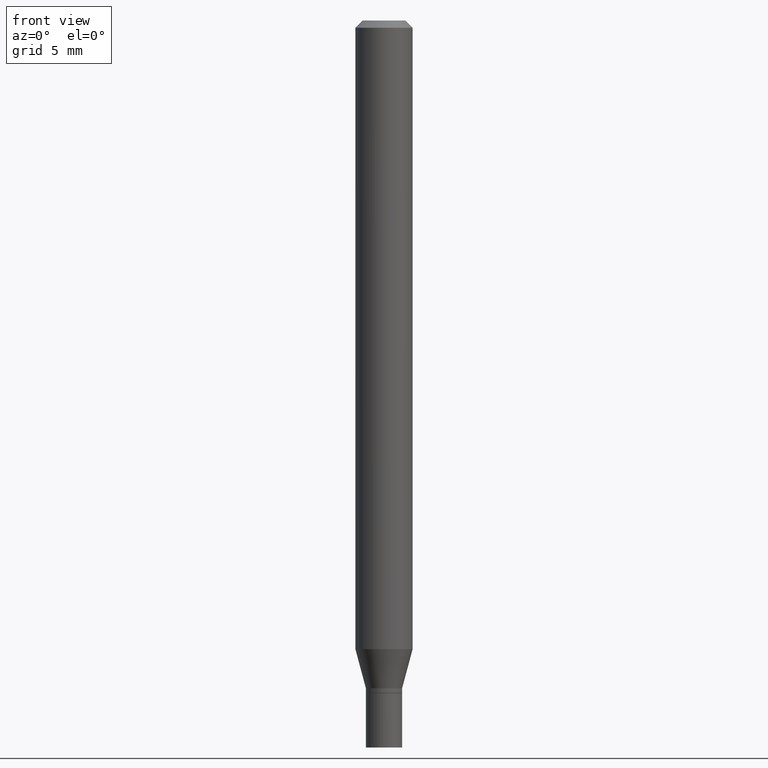
[diagram: clean part render]
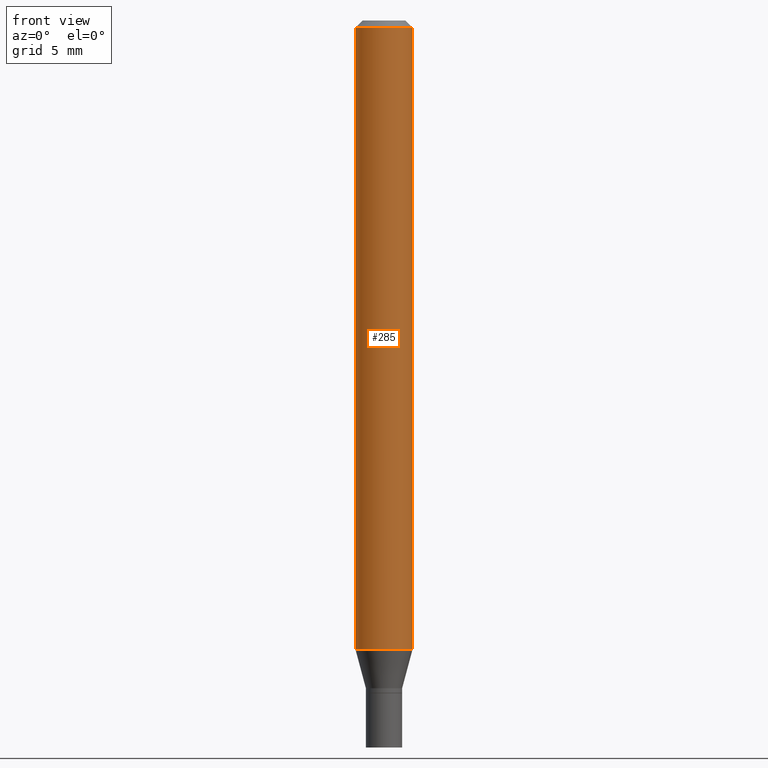
[diagram: same view with one face highlighted and labeled with its STEP entity id]
A machine part, front view. The second image highlights one B-rep face of the part: STEP entity #285.
In plain terms, the highlighted cylindrical surface (edge-blend (fillet) strip) has radius 1.4999 mm, axis along (-0, 0, 1).
Its self-contained STEP definition (entity closure, byte-faithful):
#7 = CARTESIAN_POINT ( 'NONE',  ( -0.05904999999999999832, -1.870838193157667987E-15, -0.01499999999999999944 ) ) ;
#12 = EDGE_LOOP ( 'NONE', ( #84, #48, #334, #108 ) ) ;
#29 = DIRECTION ( 'NONE',  ( 1.000000000000000000, -6.982962677686273021E-15, 0.000000000000000000 ) ) ;
#32 = FACE_OUTER_BOUND ( 'NONE', #12, .T. ) ;
#43 = AXIS2_PLACEMENT_3D ( 'NONE', #211, #351, #29 ) ;
#47 = CARTESIAN_POINT ( 'NONE',  ( 0.05904999999999999832, -4.123439461173740327E-16, 2.879382386107500220E-30 ) ) ;
#48 = ORIENTED_EDGE ( 'NONE', *, *, #118, .T. ) ;
#49 = CARTESIAN_POINT ( 'NONE',  ( -0.05904999999999999832, 4.195754854663391478E-16, -2.904631170795521892E-30 ) ) ;
#66 = CYLINDRICAL_SURFACE ( 'NONE', #79, 0.05904999999999999832 ) ;
#79 = AXIS2_PLACEMENT_3D ( 'NONE', #99, #453, #170 ) ;
#81 = VERTEX_POINT ( 'NONE', #107 ) ;
#84 = ORIENTED_EDGE ( 'NONE', *, *, #200, .F. ) ;
#85 = AXIS2_PLACEMENT_3D ( 'NONE', #151, #296, #121 ) ;
#99 = CARTESIAN_POINT ( 'NONE',  ( 0.000000000000000000, 0.000000000000000000, 0.000000000000000000 ) ) ;
#107 = CARTESIAN_POINT ( 'NONE',  ( -0.05904999999999999832, -4.108879651699028783E-15, -1.297001100016135000 ) ) ;
#108 = ORIENTED_EDGE ( 'NONE', *, *, #403, .F. ) ;
#115 = LINE ( 'NONE', #47, #195 ) ;
#118 = EDGE_CURVE ( 'NONE', #81, #401, #245, .T. ) ;
#119 = CIRCLE ( 'NONE', #85, 0.05904999999999999832 ) ;
#121 = DIRECTION ( 'NONE',  ( 1.000000000000000000, -6.982962677686266711E-15, 0.000000000000000000 ) ) ;
#148 = LINE ( 'NONE', #49, #181 ) ;
#151 = CARTESIAN_POINT ( 'NONE',  ( 3.668203209277705088E-31, -5.237222008264718399E-17, -0.01499999999999999944 ) ) ;
#170 = DIRECTION ( 'NONE',  ( 1.000000000000000000, -6.982962677686266711E-15, 4.876176775795936353E-29 ) ) ;
#181 = VECTOR ( 'NONE', #242, 39.37007874015748143 ) ;
#185 = CARTESIAN_POINT ( 'NONE',  ( 0.05904999999999999832, -4.647161662000212105E-16, -0.01499999999999999944 ) ) ;
#186 = VERTEX_POINT ( 'NONE', #7 ) ;
#189 = CARTESIAN_POINT ( 'NONE',  ( 0.05904999999999999832, -4.940799083282741618E-15, -1.297001100016135000 ) ) ;
#195 = VECTOR ( 'NONE', #375, 39.37007874015748143 ) ;
#200 = EDGE_CURVE ( 'NONE', #81, #186, #148, .T. ) ;
#211 = CARTESIAN_POINT ( 'NONE',  ( 3.171775731677266837E-29, -4.528455137165367487E-15, -1.297001100016135000 ) ) ;
#242 = DIRECTION ( 'NONE',  ( -2.445468806185136877E-29, 3.491481338843145188E-15, 1.000000000000000000 ) ) ;
#245 = CIRCLE ( 'NONE', #43, 0.05904999999999999832 ) ;
#285 = ADVANCED_FACE ( 'NONE', ( #32 ), #66, .T. ) ;
#296 = DIRECTION ( 'NONE',  ( -2.445468806185136597E-29, 3.491481338843145583E-15, 1.000000000000000000 ) ) ;
#334 = ORIENTED_EDGE ( 'NONE', *, *, #396, .T. ) ;
#351 = DIRECTION ( 'NONE',  ( -2.445468806185136597E-29, 3.491481338843145583E-15, 1.000000000000000000 ) ) ;
#375 = DIRECTION ( 'NONE',  ( -2.445468806185136877E-29, 3.491481338843145188E-15, 1.000000000000000000 ) ) ;
#396 = EDGE_CURVE ( 'NONE', #401, #397, #115, .T. ) ;
#397 = VERTEX_POINT ( 'NONE', #185 ) ;
#401 = VERTEX_POINT ( 'NONE', #189 ) ;
#403 = EDGE_CURVE ( 'NONE', #186, #397, #119, .T. ) ;
#453 = DIRECTION ( 'NONE',  ( -2.445468806185136597E-29, 3.491481338843145583E-15, 1.000000000000000000 ) ) ;